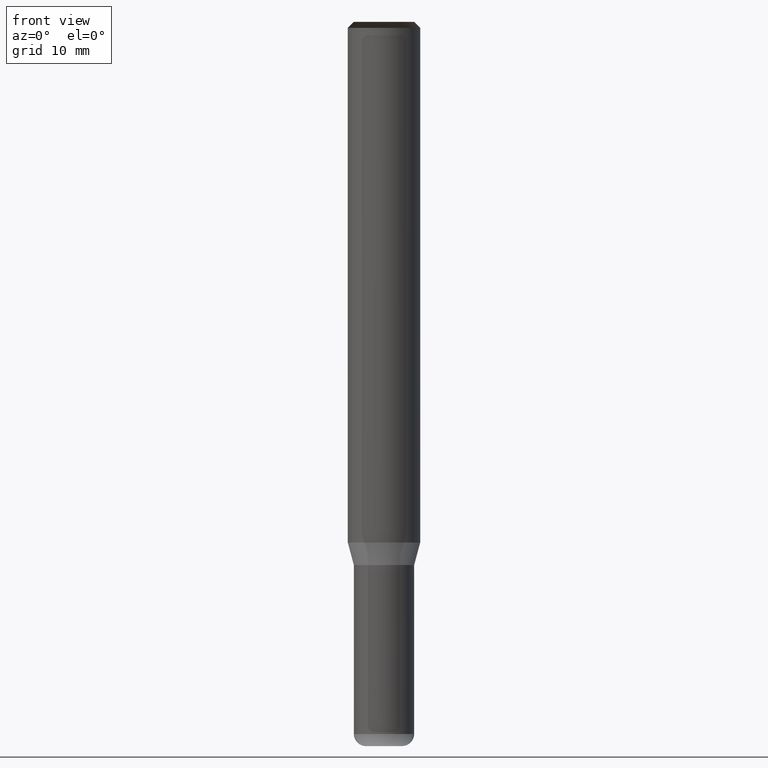
[diagram: clean part render]
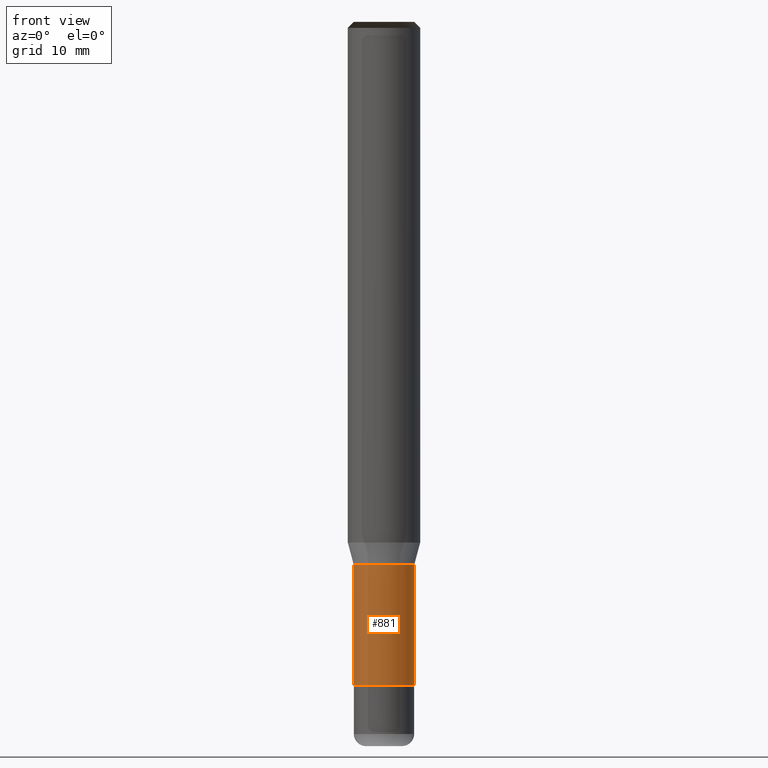
[diagram: same view with one face highlighted and labeled with its STEP entity id]
A machine part, front view. The second image highlights one B-rep face of the part: STEP entity #881.
In plain terms, the highlighted face is a freeform B-spline surface patch.
Its self-contained STEP definition (entity closure, byte-faithful):
#528=CARTESIAN_POINT('',(2.5,0.0,-11.866025403784));
#532=CARTESIAN_POINT('',(-2.5,0.0,-11.866025403784));
#543=CARTESIAN_POINT('',(-2.5,-2.5,-11.866025403784));
#544=CARTESIAN_POINT('',(0.0,-2.5,-11.866025403784));
#545=CARTESIAN_POINT('',(2.5,-2.5,-11.866025403784));
#546=CARTESIAN_POINT('',(2.5,0.0,-1.866025403784));
#550=CARTESIAN_POINT('',(-2.5,0.0,-1.866025403784));
#567=CARTESIAN_POINT('',(-2.5,-2.5,-1.866025403784));
#568=CARTESIAN_POINT('',(0.0,-2.5,-1.866025403784));
#569=CARTESIAN_POINT('',(2.5,-2.5,-1.866025403784));
#862=(
BOUNDED_SURFACE()
B_SPLINE_SURFACE(1,2,(
(#532,#543,#544,#545,#528),
(#550,#567,#568,#569,#546)
), .UNSPECIFIED.,.F.,.F.,.F.)
B_SPLINE_SURFACE_WITH_KNOTS((2,2),(3,2,3),(
0.0,1.0),(
0.0,0.5,1.0), .UNSPECIFIED.)
GEOMETRIC_REPRESENTATION_ITEM()
RATIONAL_B_SPLINE_SURFACE(((1.0,0.707106781187,1.0,0.707106781187,1.0),
(1.0,0.707106781187,1.0,0.707106781187,1.0)
))
REPRESENTATION_ITEM('')
SURFACE()
);
#863=(
BOUNDED_CURVE()
B_SPLINE_CURVE(1,(#550,#532),.UNSPECIFIED.,.F.,.F.)
B_SPLINE_CURVE_WITH_KNOTS((2,2),
(0.0,1.0),.UNSPECIFIED.)
CURVE()
GEOMETRIC_REPRESENTATION_ITEM()
RATIONAL_B_SPLINE_CURVE((1.0,1.0))
REPRESENTATION_ITEM('')
);
#864=(
BOUNDED_CURVE()
B_SPLINE_CURVE(2,(#532,#543,#544,#545,#528),.UNSPECIFIED.,.F.,.F.)
B_SPLINE_CURVE_WITH_KNOTS((3,2,3),
(0.0,0.5,1.0),.UNSPECIFIED.)
CURVE()
GEOMETRIC_REPRESENTATION_ITEM()
RATIONAL_B_SPLINE_CURVE((1.0,0.707106781187,1.0,0.707106781187,1.0))
REPRESENTATION_ITEM('')
);
#865=(
BOUNDED_CURVE()
B_SPLINE_CURVE(1,(#528,#546),.UNSPECIFIED.,.F.,.F.)
B_SPLINE_CURVE_WITH_KNOTS((2,2),
(0.0,1.0),.UNSPECIFIED.)
CURVE()
GEOMETRIC_REPRESENTATION_ITEM()
RATIONAL_B_SPLINE_CURVE((1.0,1.0))
REPRESENTATION_ITEM('')
);
#866=(
BOUNDED_CURVE()
B_SPLINE_CURVE(2,(#546,#569,#568,#567,#550),.UNSPECIFIED.,.F.,.F.)
B_SPLINE_CURVE_WITH_KNOTS((3,2,3),
(0.0,0.5,1.0),.UNSPECIFIED.)
CURVE()
GEOMETRIC_REPRESENTATION_ITEM()
RATIONAL_B_SPLINE_CURVE((1.0,0.707106781187,1.0,0.707106781187,1.0))
REPRESENTATION_ITEM('')
);
#867=VERTEX_POINT('',#528);
#868=VERTEX_POINT('',#532);
#869=VERTEX_POINT('',#546);
#870=VERTEX_POINT('',#550);
#871=EDGE_CURVE('',#870,#868,#863,.T.);
#872=EDGE_CURVE('',#868,#867,#864,.T.);
#873=EDGE_CURVE('',#867,#869,#865,.T.);
#874=EDGE_CURVE('',#869,#870,#866,.T.);
#875=ORIENTED_EDGE('',*,*,#871,.T.);
#876=ORIENTED_EDGE('',*,*,#872,.T.);
#877=ORIENTED_EDGE('',*,*,#873,.T.);
#878=ORIENTED_EDGE('',*,*,#874,.T.);
#879=EDGE_LOOP('',(#875,#876,#877,#878));
#880=FACE_OUTER_BOUND('',#879,.T.);
#881=ADVANCED_FACE('',(#880),#862,.T.);